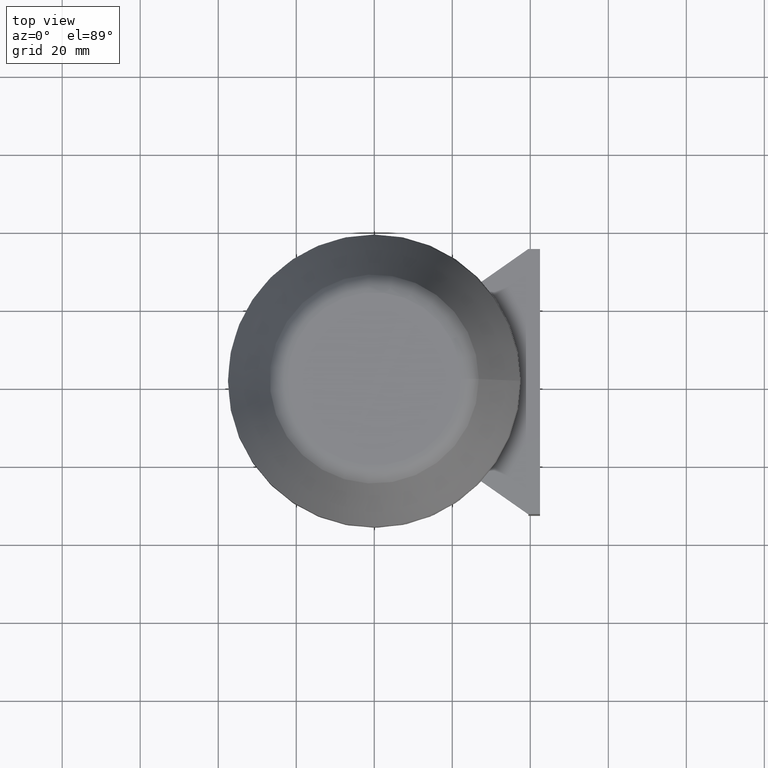
[diagram: clean part render]
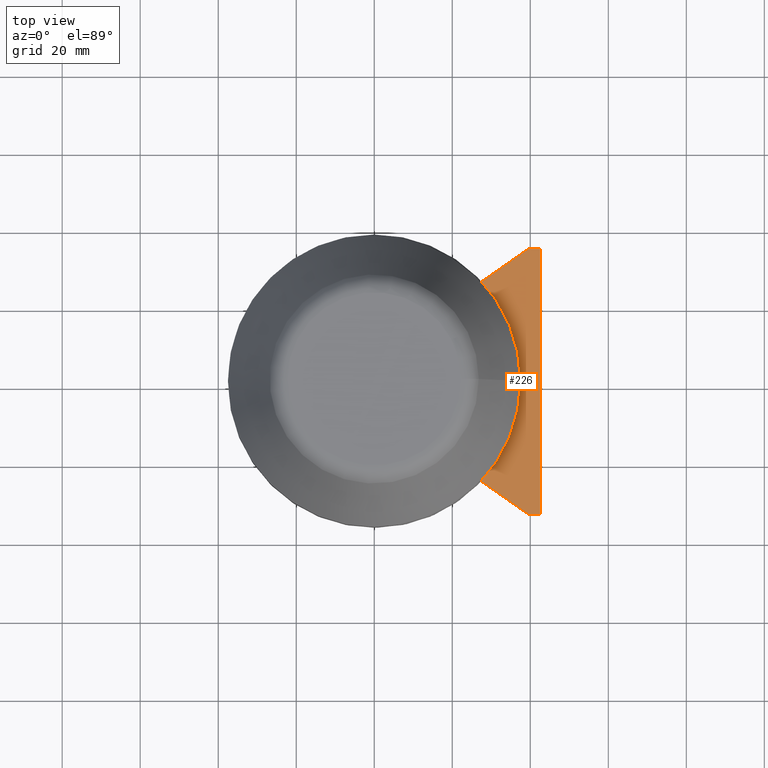
[diagram: same view with one face highlighted and labeled with its STEP entity id]
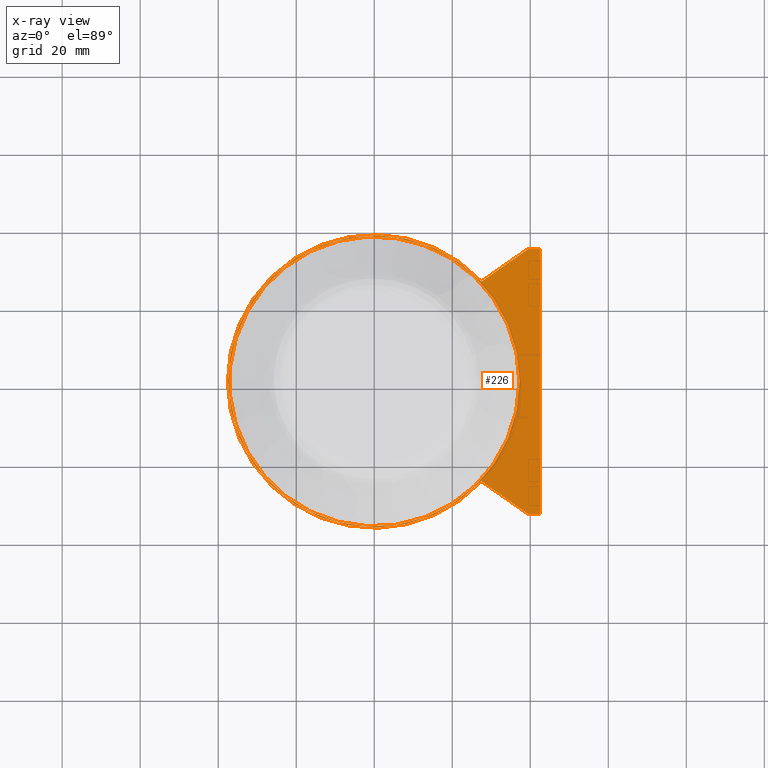
[diagram: x-ray of the same camera — body ghosted, the highlighted face saturated]
A machine part, top view. The second image highlights one B-rep face of the part: STEP entity #226.
The next image is the same camera in x-ray: the body ghosted, the highlighted face saturated — about 0% of this face is hidden behind the body in this view.
In plain terms, the highlighted planar face has unit normal (0, 0, 1).
Its self-contained STEP definition (entity closure, byte-faithful):
#53=LINE('',#1289,#102);
#54=LINE('',#1291,#103);
#55=LINE('',#1293,#104);
#56=LINE('',#1295,#105);
#57=LINE('',#1297,#106);
#102=VECTOR('',#1037,1.);
#103=VECTOR('',#1038,1.);
#104=VECTOR('',#1039,1.);
#105=VECTOR('',#1040,1.);
#106=VECTOR('',#1041,1.);
#191=PLANE('',#916);
#226=ADVANCED_FACE('',(#301,#302),#191,.T.);
#301=FACE_BOUND('',#367,.T.);
#302=FACE_BOUND('',#368,.T.);
#367=EDGE_LOOP('',(#458,#459,#460,#461,#462,#463));
#368=EDGE_LOOP('',(#464));
#458=ORIENTED_EDGE('',*,*,#755,.F.);
#459=ORIENTED_EDGE('',*,*,#756,.T.);
#460=ORIENTED_EDGE('',*,*,#757,.F.);
#461=ORIENTED_EDGE('',*,*,#758,.F.);
#462=ORIENTED_EDGE('',*,*,#759,.T.);
#463=ORIENTED_EDGE('',*,*,#760,.T.);
#464=ORIENTED_EDGE('',*,*,#748,.F.);
#665=VERTEX_POINT('',#1266);
#672=VERTEX_POINT('',#1287);
#673=VERTEX_POINT('',#1288);
#674=VERTEX_POINT('',#1290);
#675=VERTEX_POINT('',#1292);
#676=VERTEX_POINT('',#1294);
#677=VERTEX_POINT('',#1296);
#748=EDGE_CURVE('',#665,#665,#858,.T.);
#755=EDGE_CURVE('',#672,#673,#865,.T.);
#756=EDGE_CURVE('',#672,#674,#53,.T.);
#757=EDGE_CURVE('',#675,#674,#54,.T.);
#758=EDGE_CURVE('',#676,#675,#55,.T.);
#759=EDGE_CURVE('',#676,#677,#56,.T.);
#760=EDGE_CURVE('',#677,#673,#57,.T.);
#858=CIRCLE('',#901,37.2);
#865=CIRCLE('',#915,37.4999999999999);
#901=AXIS2_PLACEMENT_3D('',#1265,#1007,#1008);
#915=AXIS2_PLACEMENT_3D('',#1286,#1035,#1036);
#916=AXIS2_PLACEMENT_3D('',#1298,#1042,#1043);
#1007=DIRECTION('',(0.,0.,1.));
#1008=DIRECTION('',(1.,0.,0.));
#1035=DIRECTION('',(0.,0.,-1.));
#1036=DIRECTION('',(-1.,0.,0.));
#1037=DIRECTION('',(0.819152044288992,-0.573576436351046,0.));
#1038=DIRECTION('',(-1.,0.,0.));
#1039=DIRECTION('',(0.,-1.,0.));
#1040=DIRECTION('',(-1.,0.,0.));
#1041=DIRECTION('',(-0.819152044288993,-0.573576436351045,0.));
#1042=DIRECTION('',(0.,0.,1.));
#1043=DIRECTION('',(1.,0.,0.));
#1265=CARTESIAN_POINT('',(0.,0.,27.0960811447607));
#1266=CARTESIAN_POINT('',(37.2,0.,27.0960811447607));
#1286=CARTESIAN_POINT('',(0.,0.,27.0960811447607));
#1287=CARTESIAN_POINT('',(27.4423487844674,-25.5571417257806,27.0960811447607));
#1288=CARTESIAN_POINT('',(27.4423487844674,25.5571417257806,27.0960811447607));
#1289=CARTESIAN_POINT('',(-28.1425500713987,13.3638234637211,27.0960811447607));
#1290=CARTESIAN_POINT('',(39.5000000000001,-34.0000000000001,27.0960811447607));
#1291=CARTESIAN_POINT('',(-37.5,-34.,27.0960811447607));
#1292=CARTESIAN_POINT('',(42.5000000000001,-34.,27.0960811447607));
#1293=CARTESIAN_POINT('',(42.5000000000001,54.5590529598418,27.0960811447607));
#1294=CARTESIAN_POINT('',(42.5000000000001,34.,27.0960811447607));
#1295=CARTESIAN_POINT('',(-37.5,34.,27.0960811447607));
#1296=CARTESIAN_POINT('',(39.5000000000001,34.,27.0960811447607));
#1297=CARTESIAN_POINT('',(-28.1425500713987,-13.363823463721,27.0960811447607));
#1298=CARTESIAN_POINT('',(-37.5,0.,27.0960811447607));